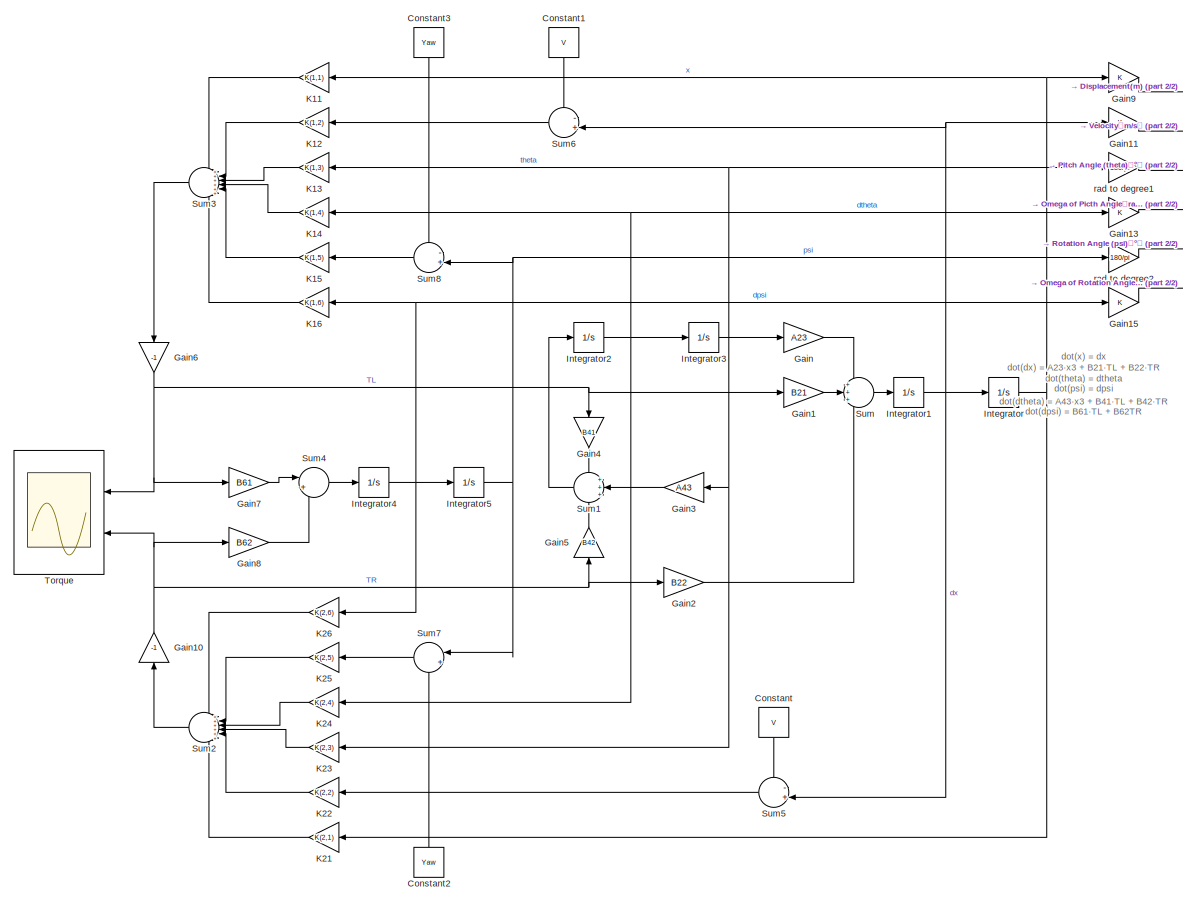
[diagram: root canvas - part 1/2, most of the canvas]
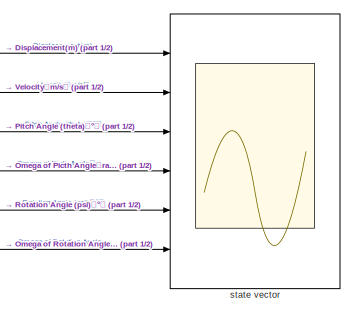
[diagram: root canvas - part 2/2, top right region]
MODEL slx_9f44abc10889
KIND model
CONFIG AbsTol = auto
CONFIG EnableMultiTasking = off
CONFIG FixedStep = auto
CONFIG MaxStep = auto
CONFIG MinStep = auto
CONFIG RelTol = 1e-3
CONFIG SampleTimeConstraint = Unconstrained
CONFIG SolverName = VariableStepAuto
CONFIG StartTime = 0.0
CONFIG StopTime = 10.0
BLOCK [Constant] Constant
  NameLocation = left
  Value = V
BLOCK [Constant] Constant1
  NameLocation = right
  Value = V
BLOCK [Constant] Constant2
  NameLocation = right
  Value = Yaw
BLOCK [Constant] Constant3
  NameLocation = right
  Value = Yaw
BLOCK [Gain] Gain
  Gain = A23
BLOCK [Gain] Gain1
  Gain = B21
BLOCK [Gain] Gain10
  Gain = -1
  NameLocation = right
BLOCK [Gain] Gain11
BLOCK [Gain] Gain13
BLOCK [Gain] Gain15
BLOCK [Gain] Gain2
  Gain = B22
BLOCK [Gain] Gain3
  Gain = A43
BLOCK [Gain] Gain4
  Gain = B41
  NameLocation = right
BLOCK [Gain] Gain5
  Gain = B42
  NameLocation = right
BLOCK [Gain] Gain6
  Gain = -1
  NameLocation = left
BLOCK [Gain] Gain7
  Gain = B61
BLOCK [Gain] Gain8
  Gain = B62
BLOCK [Gain] Gain9
BLOCK [Integrator] Integrator
  Ports = [1, 1]
BLOCK [Integrator] Integrator1
  Ports = [1, 1]
BLOCK [Integrator] Integrator2
  Ports = [1, 1]
BLOCK [Integrator] Integrator3
  Ports = [1, 1]
BLOCK [Integrator] Integrator4
  Ports = [1, 1]
BLOCK [Integrator] Integrator5
  Ports = [1, 1]
BLOCK [Gain] K11
  Gain = K(1,1)
BLOCK [Gain] K12
  Gain = K(1,2)
BLOCK [Gain] K13
  Gain = K(1,3)
BLOCK [Gain] K14
  Gain = K(1,4)
BLOCK [Gain] K15
  Gain = K(1,5)
BLOCK [Gain] K16
  Gain = K(1,6)
BLOCK [Gain] K21
  Gain = K(2,1)
BLOCK [Gain] K22
  Gain = K(2,2)
BLOCK [Gain] K23
  Gain = K(2,3)
BLOCK [Gain] K24
  Gain = K(2,4)
BLOCK [Gain] K25
  Gain = K(2,5)
BLOCK [Gain] K26
  Gain = K(2,6)
BLOCK [Sum] Sum
  Inputs = +++
  Ports = [3, 1]
BLOCK [Sum] Sum1
  Inputs = +++
  Ports = [3, 1]
BLOCK [Sum] Sum2
  Inputs = ++++++
  Ports = [6, 1]
BLOCK [Sum] Sum3
  Inputs = ++++++
  Ports = [6, 1]
BLOCK [Sum] Sum4
  Inputs = |++
  Ports = [2, 1]
BLOCK [Sum] Sum5
  Inputs = -+|
  Ports = [2, 1]
BLOCK [Sum] Sum6
  Inputs = -+|
  Ports = [2, 1]
BLOCK [Sum] Sum7
  Inputs = |+-
  NameLocation = top
  Ports = [2, 1]
BLOCK [Sum] Sum8
  Inputs = -+|
  Ports = [2, 1]
BLOCK [Scope] Torque
  Floating = off
  NumInputPorts = 2
  Ports = [2]
  ScopeSpecificationString = Simulink.scopes.TimeScopeBlockCfg('CurrentConfiguration', extmgr.ConfigurationSet(extmgr.Configuration('Core','General UI',true,'FigureColor',[0 0 0]),extmgr.Configuration('Core','Source UI',true),extmgr.Configuration('Sources','WiredSimulink',true,'DataLoggingVariableName','ScopeData1'),extmgr.Configuration('Visuals','Time Domain',true,'SerializedDisplays',{struct('MinYLimReal','-2.94934','MaxYLi...<+2370ch>
BLOCK [Gain] rad to degree1
  Gain = 180/pi
BLOCK [Gain] rad to degree2
  Gain = 180/pi
BLOCK [Scope] state vector
  Floating = off
  NumInputPorts = 6
  Ports = [6]
  ScopeSpecificationString = Simulink.scopes.TimeScopeBlockCfg('CurrentConfiguration', extmgr.ConfigurationSet(extmgr.Configuration('Core','General UI',true,'FigureColor',[0 0 0]),extmgr.Configuration('Core','Source UI',true),extmgr.Configuration('Sources','WiredSimulink',true),extmgr.Configuration('Visuals','Time Domain',true,'SerializedDisplays',{struct('MinYLimReal','-1.20645','MaxYLimReal','10.45279','YLabelReal','','MinY...<+5388ch>
ANNOTATION (root): dot(x) = dx dot(dx) = A23·x3 + B21·TL + B22·TR dot(theta) = dtheta dot(dtheta) = A43·x3 + B41·TL + B42·TR dot(psi) = dpsi dot(dpsi) = B61·TL + B62TR TL= - (K11·x1 + K12·x2 + K13·x3 + K14·x4 + K15·x5 + K16·x6) TR= - (K21·x1+ K22·x2 + K23·x3 + K24·x4 + K25·x5 + K26·x6)
LINE Constant1:1 -> Sum6:1
LINE Constant2:1 -> Sum7:2
LINE Constant3:1 -> Sum8:1
LINE Constant:1 -> Sum5:1
NET Gain10:1 -> Gain2:1, Gain5:1, Gain8:1, Torque:2
LINE Gain11:1 -> state vector:2
LINE Gain13:1 -> state vector:4
LINE Gain15:1 -> state vector:6
LINE Gain1:1 -> Sum:2
LINE Gain2:1 -> Sum:3
LINE Gain3:1 -> Sum1:2
LINE Gain4:1 -> Sum1:1
LINE Gain5:1 -> Sum1:3
NET Gain6:1 -> Gain1:1, Gain4:1, Gain7:1, Torque:1
LINE Gain7:1 -> Sum4:1
LINE Gain8:1 -> Sum4:2
LINE Gain9:1 -> state vector:1
LINE Gain:1 -> Sum:1
NET Integrator1:1 -> Gain11:1, Integrator:1, Sum5:2, Sum6:2
NET Integrator2:1 -> Gain13:1, Integrator3:1, K14:1, K24:1
NET Integrator3:1 -> Gain3:1, Gain:1, K13:1, K23:1, rad to degree1:1
NET Integrator4:1 -> Gain15:1, Integrator5:1, K16:1, K26:1
NET Integrator5:1 -> Sum7:1, Sum8:2, rad to degree2:1
NET Integrator:1 -> Gain9:1, K11:1, K21:1
LINE K11:1 -> Sum3:1
LINE K12:1 -> Sum3:2
LINE K13:1 -> Sum3:3
LINE K14:1 -> Sum3:4
LINE K15:1 -> Sum3:5
LINE K16:1 -> Sum3:6
LINE K21:1 -> Sum2:6
LINE K22:1 -> Sum2:5
LINE K23:1 -> Sum2:4
LINE K24:1 -> Sum2:3
LINE K25:1 -> Sum2:2
LINE K26:1 -> Sum2:1
LINE Sum1:1 -> Integrator2:1
LINE Sum2:1 -> Gain10:1
LINE Sum3:1 -> Gain6:1
LINE Sum4:1 -> Integrator4:1
LINE Sum5:1 -> K22:1
LINE Sum6:1 -> K12:1
LINE Sum7:1 -> K25:1
LINE Sum8:1 -> K15:1
LINE Sum:1 -> Integrator1:1
LINE rad to degree1:1 -> state vector:3
LINE rad to degree2:1 -> state vector:5
note: NET lines group one-source signal fan-out (src -> all destinations, sorted); 1:1 wires keep LINE
